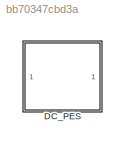
MODEL slx_bb70347cbd3a
KIND model
CONFIG AbsTol = auto
CONFIG EnableMultiTasking = off
CONFIG FixedStep = auto
CONFIG MaxStep = auto
CONFIG MinStep = auto
CONFIG RelTol = 1e-3
CONFIG SampleTimeConstraint = Unconstrained
CONFIG SolverName = VariableStepAuto
CONFIG StartTime = 0.0
CONFIG StopTime = 10.0
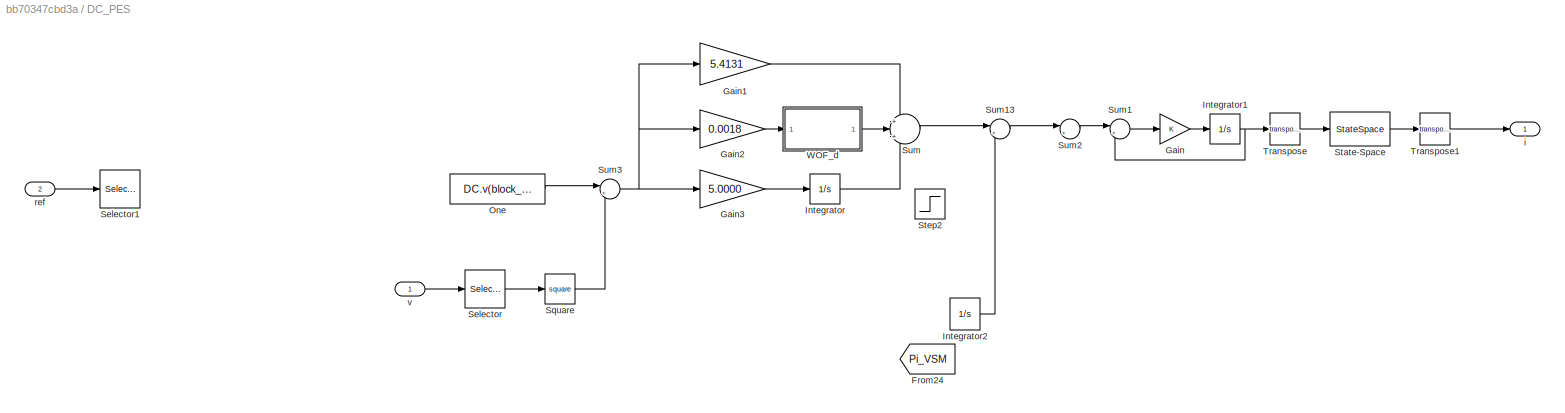
BLOCK [SubSystem] DC_PES
  Commented = on
BLOCK [From] DC_PES/From24
  GotoTag = Pi_VSM
  TagVisibility = global
BLOCK [Gain] DC_PES/Gain
BLOCK [Gain] DC_PES/Gain1
  Gain = 5.4131
BLOCK [Gain] DC_PES/Gain2
  Gain = 0.0018
BLOCK [Gain] DC_PES/Gain3
  Gain = 5.0000
BLOCK [Integrator] DC_PES/Integrator
  InitialCondition = Grid_DCop_DC_PES.op.States(1).x'
BLOCK [Integrator] DC_PES/Integrator1
  InitialCondition = Grid_DCop_DC_PES.op.States(2).x'
BLOCK [Integrator] DC_PES/Integrator2
  InitialCondition = Grid_DCop_DC_PES.op.States(3).x'
BLOCK [Constant] DC_PES/One
  OutDataTypeStr = Inherit: Inherit via back propagation
  Value = DC.v(block_buses)
  VectorParams1D = off
BLOCK [Selector] DC_PES/Selector
  IndexOptions = Index vector (dialog)
  Indices = block_buses
  InputPortWidth = DC.Nbuses
  OutputSizes = 1
BLOCK [Selector] DC_PES/Selector1
  Commented = on
  IndexOptions = Index vector (dialog)
  Indices = [1 3]
  InputPortWidth = 3
  OutputSizes = 1
BLOCK [Math] DC_PES/Square
  Operator = square
BLOCK [StateSpace] DC_PES/State-Space
  A = []
  B = []
  C = []
  D = block_toM
  InitialCondition = 0
  ParameterTunability = Optimized
BLOCK [Step] DC_PES/Step2
  After = 0.1
  SampleTime = 0
  Time = 0.1
BLOCK [Sum] DC_PES/Sum
  Inputs = +|+|+
BLOCK [Sum] DC_PES/Sum1
  Inputs = |+-
BLOCK [Sum] DC_PES/Sum13
  Inputs = |++
BLOCK [Sum] DC_PES/Sum2
  Inputs = |+-
BLOCK [Sum] DC_PES/Sum3
  Inputs = |+-
BLOCK [Math] DC_PES/Transpose
  Operator = transpose
BLOCK [Math] DC_PES/Transpose1
  Operator = transpose
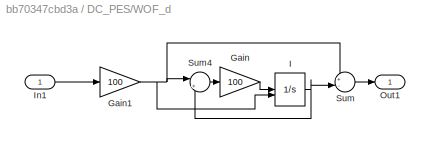
BLOCK [SubSystem] DC_PES/WOF_d
BLOCK [Gain] DC_PES/WOF_d/Gain
  Gain = 100
BLOCK [Gain] DC_PES/WOF_d/Gain1
  Gain = 100
BLOCK [Integrator] DC_PES/WOF_d/I
  InitialCondition = Grid_DCop_DC_PES.op.States(4).x'
  InitialConditionSource = external
BLOCK [Inport] DC_PES/WOF_d/In1
BLOCK [Outport] DC_PES/WOF_d/Out1
BLOCK [Sum] DC_PES/WOF_d/Sum
  Inputs = +-|
BLOCK [Sum] DC_PES/WOF_d/Sum4
  Inputs = |+-
BLOCK [Outport] DC_PES/i
BLOCK [Inport] DC_PES/ref
  Port = 2
BLOCK [Inport] DC_PES/v
LINE DC_PES/Gain1:1 -> DC_PES/Sum:1
LINE DC_PES/Gain2:1 -> DC_PES/WOF_d:1
LINE DC_PES/Gain3:1 -> DC_PES/Integrator:1
LINE DC_PES/Gain:1 -> DC_PES/Integrator1:1
NET DC_PES/Integrator1:1 -> DC_PES/Sum1:2, DC_PES/Transpose:1
LINE DC_PES/Integrator2:1 -> DC_PES/Sum13:2
LINE DC_PES/Integrator:1 -> DC_PES/Sum:3
LINE DC_PES/One:1 -> DC_PES/Sum3:1
LINE DC_PES/Selector:1 -> DC_PES/Square:1
LINE DC_PES/Square:1 -> DC_PES/Sum3:2
LINE DC_PES/State-Space:1 -> DC_PES/Transpose1:1
LINE DC_PES/Sum13:1 -> DC_PES/Sum2:1
LINE DC_PES/Sum1:1 -> DC_PES/Gain:1
LINE DC_PES/Sum2:1 -> DC_PES/Sum1:1
NET DC_PES/Sum3:1 -> DC_PES/Gain1:1, DC_PES/Gain2:1, DC_PES/Gain3:1
LINE DC_PES/Sum:1 -> DC_PES/Sum13:1
LINE DC_PES/Transpose1:1 -> DC_PES/i:1
LINE DC_PES/Transpose:1 -> DC_PES/State-Space:1
NET DC_PES/WOF_d/Gain1:1 -> DC_PES/WOF_d/I:2, DC_PES/WOF_d/Sum4:1, DC_PES/WOF_d/Sum:1
LINE DC_PES/WOF_d/Gain:1 -> DC_PES/WOF_d/I:1
NET DC_PES/WOF_d/I:1 -> DC_PES/WOF_d/Sum4:2, DC_PES/WOF_d/Sum:2
LINE DC_PES/WOF_d/In1:1 -> DC_PES/WOF_d/Gain1:1
LINE DC_PES/WOF_d/Sum4:1 -> DC_PES/WOF_d/Gain:1
LINE DC_PES/WOF_d/Sum:1 -> DC_PES/WOF_d/Out1:1
LINE DC_PES/WOF_d:1 -> DC_PES/Sum:2
LINE DC_PES/ref:1 -> DC_PES/Selector1:1
LINE DC_PES/v:1 -> DC_PES/Selector:1
note: NET lines group one-source signal fan-out (src -> all destinations, sorted); 1:1 wires keep LINE
